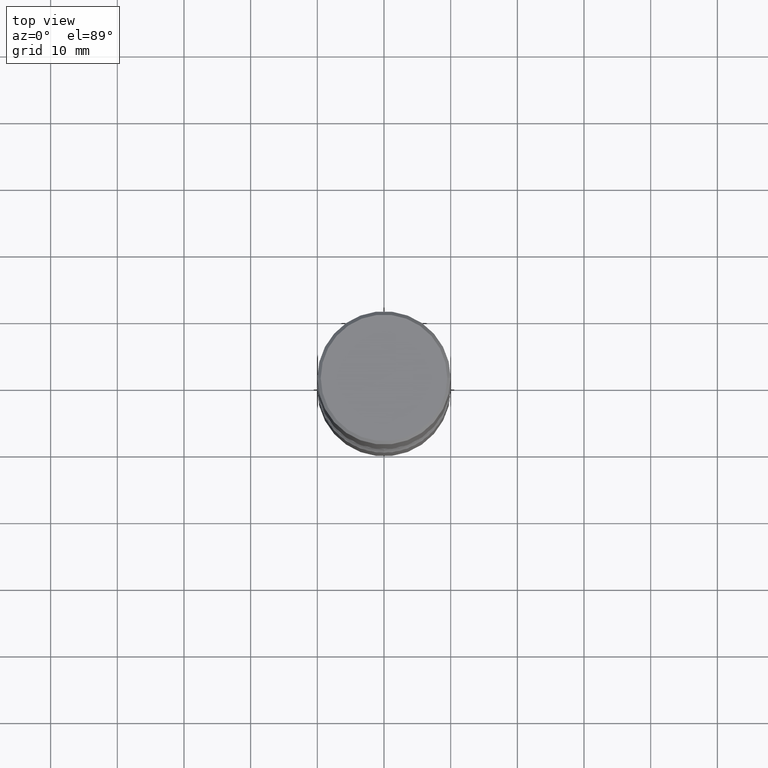
[diagram: clean part render]
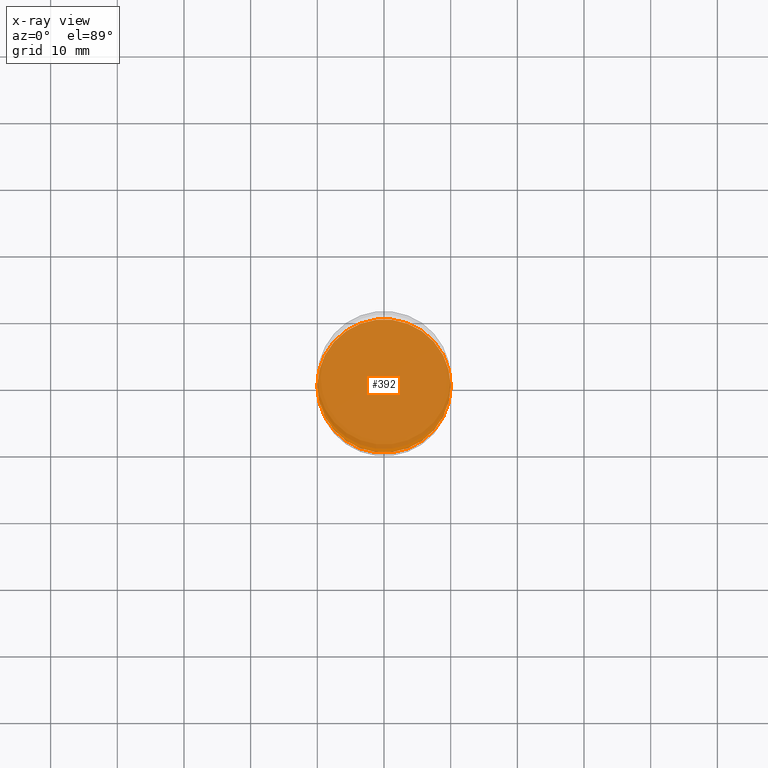
[diagram: x-ray — body ghosted, one internal face saturated and labeled with its STEP entity id]
A machine part, top view, then the same camera in x-ray: the body is ghosted and one INTERNAL B-rep face — a face not visible from any outside direction — is saturated and labeled: STEP entity #392.
In plain terms, the highlighted planar face has unit normal (0, -0, -1).
Its self-contained STEP definition (entity closure, byte-faithful):
#24 = VERTEX_POINT ( 'NONE', #411 ) ;
#49 = AXIS2_PLACEMENT_3D ( 'NONE', #504, #333, #454 ) ;
#68 = ORIENTED_EDGE ( 'NONE', *, *, #539, .T. ) ;
#81 = AXIS2_PLACEMENT_3D ( 'NONE', #501, #212, #206 ) ;
#87 = CARTESIAN_POINT ( 'NONE',  ( 0.3937000000000002164, -1.250858104453944804E-14, -2.795200000000000351 ) ) ;
#145 = CIRCLE ( 'NONE', #81, 0.3937000000000002164 ) ;
#206 = DIRECTION ( 'NONE',  ( 1.000000000000000000, -6.982962677686269866E-15, 0.000000000000000000 ) ) ;
#207 = PLANE ( 'NONE',  #49 ) ;
#212 = DIRECTION ( 'NONE',  ( -2.445468806185136597E-29, 3.491481338843145583E-15, 1.000000000000000000 ) ) ;
#221 = EDGE_CURVE ( 'NONE', #352, #24, #446, .T. ) ;
#223 = EDGE_LOOP ( 'NONE', ( #443, #68 ) ) ;
#244 = FACE_OUTER_BOUND ( 'NONE', #223, .T. ) ;
#313 = CARTESIAN_POINT ( 'NONE',  ( 6.835574407048695164E-29, -9.759388638334361670E-15, -2.795200000000000351 ) ) ;
#333 = DIRECTION ( 'NONE',  ( 2.438088387897960049E-29, -3.491481338843145188E-15, -1.000000000000000000 ) ) ;
#352 = VERTEX_POINT ( 'NONE', #87 ) ;
#391 = AXIS2_PLACEMENT_3D ( 'NONE', #313, #436, #532 ) ;
#392 = ADVANCED_FACE ( 'NONE', ( #244 ), #207, .F. ) ;
#411 = CARTESIAN_POINT ( 'NONE',  ( -0.3937000000000002164, -9.092658374675872059E-15, -2.795200000000000351 ) ) ;
#436 = DIRECTION ( 'NONE',  ( -2.445468806185136597E-29, 3.491481338843145583E-15, 1.000000000000000000 ) ) ;
#443 = ORIENTED_EDGE ( 'NONE', *, *, #221, .T. ) ;
#446 = CIRCLE ( 'NONE', #391, 0.3937000000000002164 ) ;
#454 = DIRECTION ( 'NONE',  ( -1.000000000000000000, 6.982962677686265922E-15, -4.876176775795935793E-29 ) ) ;
#501 = CARTESIAN_POINT ( 'NONE',  ( 6.835574407048695164E-29, -9.759388638334361670E-15, -2.795200000000000351 ) ) ;
#504 = CARTESIAN_POINT ( 'NONE',  ( 4.126794496352893348E-29, -1.363851564462866640E-14, -2.795199999999999907 ) ) ;
#532 = DIRECTION ( 'NONE',  ( 1.000000000000000000, -6.982962677686269866E-15, 0.000000000000000000 ) ) ;
#539 = EDGE_CURVE ( 'NONE', #24, #352, #145, .T. ) ;